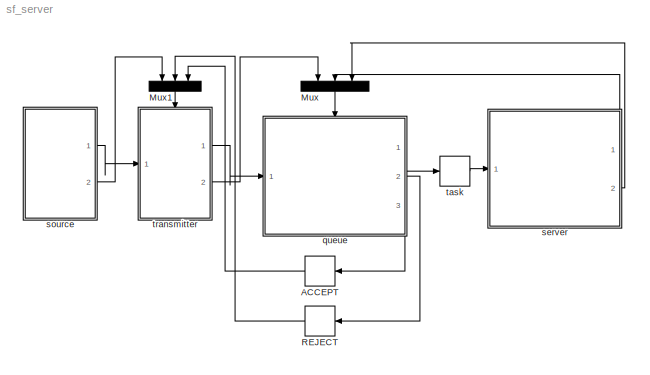
MODEL sf_server
KIND model
CONFIG PreLoadFcn = queueLength = 10;
BLOCK [Memory] ACCEPT
BLOCK [Mux] Mux
  DisplayOption = bar
  Inputs = 3
  Ports = [3, 1]
BLOCK [Mux] Mux1
  DisplayOption = bar
  Inputs = 3
  Ports = [3, 1]
BLOCK [Memory] REJECT
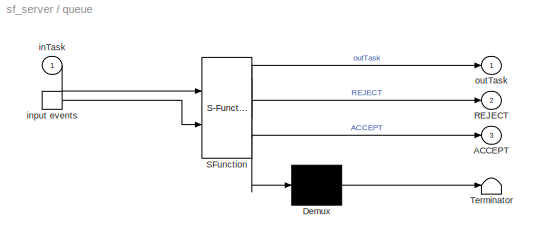
BLOCK [SubSystem] queue
  MaskDescription = Stateflow diagram
  MaskDisplay = plot(sf('Private','sfblk','xIcon'),sf('Private','sfblk','yIcon'));text(0.5,0,sf('Private', 'sfblk', 'tIcon'),'HorizontalAl','Center','VerticalAl','Bottom');
  MaskIconFrame = off
  MaskIconOpaque = off
  MaskIconRotate = none
  MaskIconUnits = autoscale
  MaskSelfModifiable = on
  MaskType = Stateflow
  MinAlgLoopOccurrences = off
  Ports = [1, 3, 0, 1]
  PropExecContextAcrossSSBoundary = on
  RTWSystemCode = Auto
  TreatAsAtomicUnit = off
BLOCK [Demux] queue/ Demux 
  Outputs = 1
  Ports = [1, 1]
BLOCK [S-Function] queue/ SFunction 
  FunctionName = sf_sfun
  PortCounts = [2 4]
  Ports = [2, 4]
  Tag = Stateflow S-Function sf_server 1
BLOCK [Terminator] queue/ Terminator 
BLOCK [TriggerPort] queue/ input events 
  Ports = [0, 1]
  ShowOutputPort = on
  StatesWhenEnabling = reset
  TriggerType = either
BLOCK [Outport] queue/ACCEPT
  BusOutputAsStruct = off
  IconDisplay = Port number
  Port = 3
BLOCK [Outport] queue/REJECT
  BusOutputAsStruct = off
  IconDisplay = Port number
  Port = 2
BLOCK [Inport] queue/inTask
  IconDisplay = Port number
  LatchInput = off
  Port = 1
BLOCK [Outport] queue/outTask
  BusOutputAsStruct = off
  IconDisplay = Port number
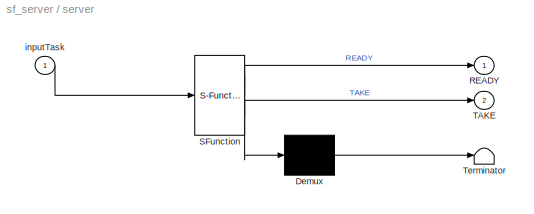
BLOCK [SubSystem] server
  MaskDescription = Stateflow diagram
  MaskDisplay = plot(sf('Private','sfblk','xIcon'),sf('Private','sfblk','yIcon'));text(0.5,0,sf('Private', 'sfblk', 'tIcon'),'HorizontalAl','Center','VerticalAl','Bottom');
  MaskIconFrame = off
  MaskIconOpaque = off
  MaskIconRotate = none
  MaskIconUnits = autoscale
  MaskSelfModifiable = on
  MaskType = Stateflow
  MinAlgLoopOccurrences = off
  Ports = [1, 2]
  PropExecContextAcrossSSBoundary = on
  RTWSystemCode = Auto
  TreatAsAtomicUnit = off
BLOCK [Demux] server/ Demux 
  Outputs = 1
  Ports = [1, 1]
BLOCK [S-Function] server/ SFunction 
  FunctionName = sf_sfun
  PortCounts = [1 3]
  Ports = [1, 3]
  Tag = Stateflow S-Function sf_server 2
BLOCK [Terminator] server/ Terminator 
BLOCK [Outport] server/READY
  BusOutputAsStruct = off
  IconDisplay = Port number
BLOCK [Outport] server/TAKE
  BusOutputAsStruct = off
  IconDisplay = Port number
  Port = 2
BLOCK [Inport] server/inputTask
  IconDisplay = Port number
  LatchInput = off
  Port = 1
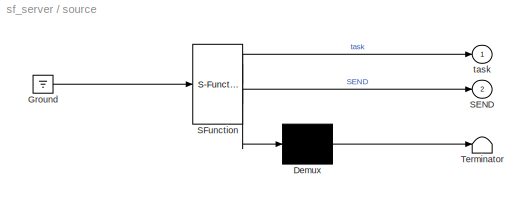
BLOCK [SubSystem] source
  MaskDescription = Stateflow diagram
  MaskDisplay = plot(sf('Private','sfblk','xIcon'),sf('Private','sfblk','yIcon'));text(0.5,0,sf('Private', 'sfblk', 'tIcon'),'HorizontalAl','Center','VerticalAl','Bottom');
  MaskIconFrame = off
  MaskIconOpaque = off
  MaskIconRotate = none
  MaskIconUnits = autoscale
  MaskSelfModifiable = on
  MaskType = Stateflow
  MinAlgLoopOccurrences = off
  Ports = [0, 2]
  PropExecContextAcrossSSBoundary = on
  RTWSystemCode = Auto
  TreatAsAtomicUnit = off
BLOCK [Demux] source/ Demux 
  Outputs = 1
  Ports = [1, 1]
BLOCK [Ground] source/ Ground 
BLOCK [S-Function] source/ SFunction 
  FunctionName = sf_sfun
  PortCounts = [1 3]
  Ports = [1, 3]
  Tag = Stateflow S-Function sf_server 4
BLOCK [Terminator] source/ Terminator 
BLOCK [Outport] source/SEND
  BusOutputAsStruct = off
  IconDisplay = Port number
  Port = 2
BLOCK [Outport] source/task
  BusOutputAsStruct = off
  IconDisplay = Port number
BLOCK [Memory] task
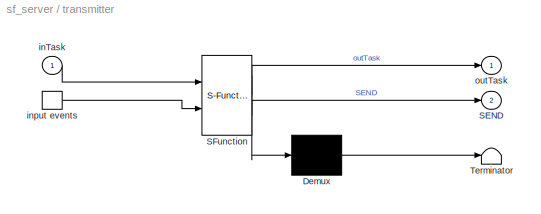
BLOCK [SubSystem] transmitter
  MaskDescription = Stateflow diagram
  MaskDisplay = plot(sf('Private','sfblk','xIcon'),sf('Private','sfblk','yIcon'));text(0.5,0,sf('Private', 'sfblk', 'tIcon'),'HorizontalAl','Center','VerticalAl','Bottom');
  MaskIconFrame = off
  MaskIconOpaque = off
  MaskIconRotate = none
  MaskIconUnits = autoscale
  MaskSelfModifiable = on
  MaskType = Stateflow
  MinAlgLoopOccurrences = off
  Ports = [1, 2, 0, 1]
  PropExecContextAcrossSSBoundary = on
  RTWSystemCode = Auto
  TreatAsAtomicUnit = off
BLOCK [Demux] transmitter/ Demux 
  Outputs = 1
  Ports = [1, 1]
BLOCK [S-Function] transmitter/ SFunction 
  FunctionName = sf_sfun
  PortCounts = [2 3]
  Ports = [2, 3]
  Tag = Stateflow S-Function sf_server 3
BLOCK [Terminator] transmitter/ Terminator 
BLOCK [TriggerPort] transmitter/ input events 
  Ports = [0, 1]
  ShowOutputPort = on
  StatesWhenEnabling = reset
  TriggerType = either
BLOCK [Outport] transmitter/SEND
  BusOutputAsStruct = off
  IconDisplay = Port number
  Port = 2
BLOCK [Inport] transmitter/inTask
  IconDisplay = Port number
  LatchInput = off
  Port = 1
BLOCK [Outport] transmitter/outTask
  BusOutputAsStruct = off
  IconDisplay = Port number
LINE ACCEPT:1 -> Mux1:3
LINE Mux1:1 -> transmitter:trigger
LINE Mux:1 -> queue:trigger
LINE REJECT:1 -> Mux1:2
LINE queue/ Demux :1 -> queue/ Terminator :1
LINE queue/ SFunction :1 -> queue/ Demux :1
LINE queue/ SFunction :2 -> queue/outTask:1
LINE queue/ SFunction :3 -> queue/REJECT:1
LINE queue/ SFunction :4 -> queue/ACCEPT:1
LINE queue/ input events :1 -> queue/ SFunction :2
LINE queue/inTask:1 -> queue/ SFunction :1
LINE queue:1 -> task:1
LINE queue:2 -> REJECT:1
LINE queue:3 -> ACCEPT:1
LINE server/ Demux :1 -> server/ Terminator :1
LINE server/ SFunction :1 -> server/ Demux :1
LINE server/ SFunction :2 -> server/READY:1
LINE server/ SFunction :3 -> server/TAKE:1
LINE server/inputTask:1 -> server/ SFunction :1
LINE server:1 -> Mux:2
LINE server:2 -> Mux:3
LINE source/ Demux :1 -> source/ Terminator :1
LINE source/ Ground :1 -> source/ SFunction :1
LINE source/ SFunction :1 -> source/ Demux :1
LINE source/ SFunction :2 -> source/task:1
LINE source/ SFunction :3 -> source/SEND:1
LINE source:1 -> transmitter:1
LINE source:2 -> Mux1:1
LINE task:1 -> server:1
LINE transmitter/ Demux :1 -> transmitter/ Terminator :1
LINE transmitter/ SFunction :1 -> transmitter/ Demux :1
LINE transmitter/ SFunction :2 -> transmitter/outTask:1
LINE transmitter/ SFunction :3 -> transmitter/SEND:1
LINE transmitter/ input events :1 -> transmitter/ SFunction :2
LINE transmitter/inTask:1 -> transmitter/ SFunction :1
LINE transmitter:1 -> queue:1
LINE transmitter:2 -> Mux:1
CHART queue states=7 transitions=17
  STATE_LABEL 'Queue'
  STATE_LABEL 'b = is_empty()'
  STATE_LABEL 'enqueue(d)'
  STATE_LABEL 'd = dequeue()'
  STATE_LABEL 'next = increment(i)'
  STATE_LABEL 'b = is_full()'
  STATE_LABEL 'set_queue(queue,front,back,isFull)'
CHART server states=3 transitions=4
  STATE_LABEL 'Idle\\nREADY;'
  STATE_LABEL 'Busy'
  STATE_LABEL 'process_task(task)'
CHART transmitter states=4 transitions=3
  STATE_LABEL 'init_gui'
  STATE_LABEL 'send_task(task)'
  STATE_LABEL 'reject_task()'
  STATE_LABEL 'accept_task()'
CHART source states=2 transitions=21
  STATE_LABEL 'Pause\\nex: ml.pause(.1);'
  STATE_LABEL 'Send'
